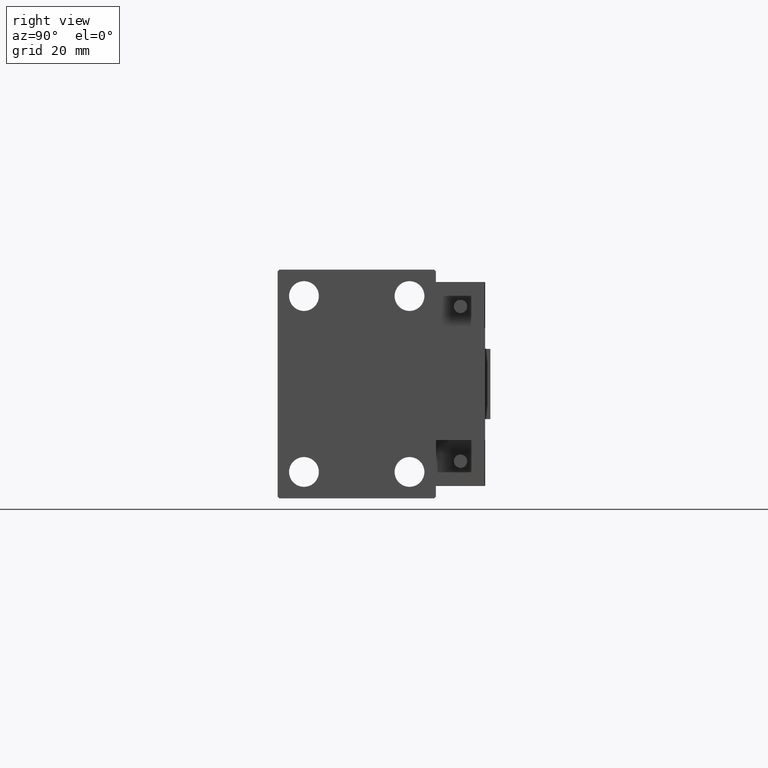
[diagram: clean part render]
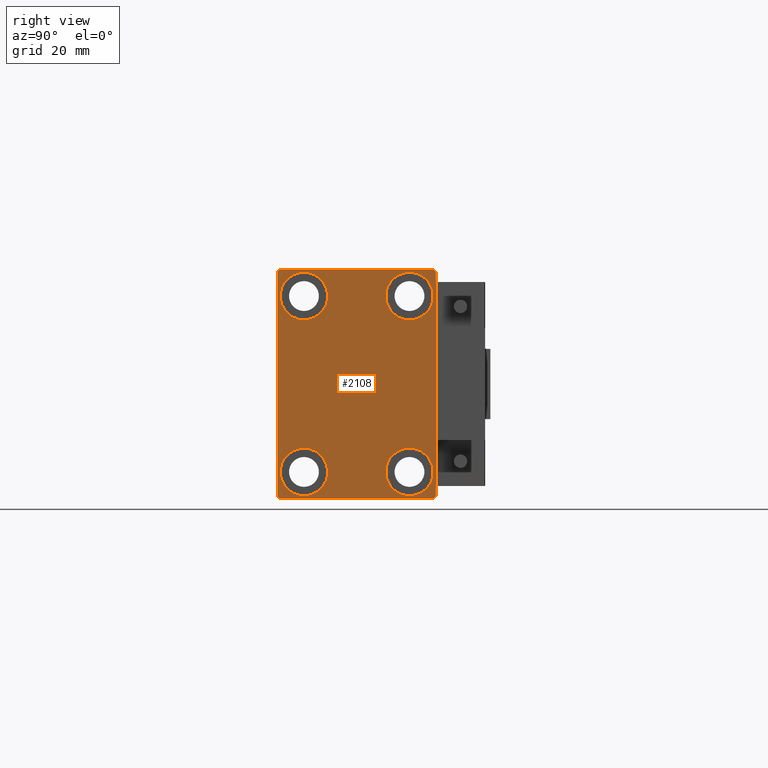
[diagram: same view with one face highlighted and labeled with its STEP entity id]
A machine part, right view. The second image highlights one B-rep face of the part: STEP entity #2108.
In plain terms, the highlighted planar face has unit normal (1, 0, 0).
Its self-contained STEP definition (entity closure, byte-faithful):
#698 = CARTESIAN_POINT ( 'NONE',  ( 70.00000000000000000, -22.50000000000000711, -32.50000000000000711 ) ) ;
#699 = CARTESIAN_POINT ( 'NONE',  ( 70.00000000000000000, 21.99999999999999289, 32.50000000000000000 ) ) ;
#853 = CARTESIAN_POINT ( 'NONE',  ( 70.00000000000000000, 15.00000000000000355, 31.75000000000000000 ) ) ;
#976 = DIRECTION ( 'NONE',  ( 0.000000000000000000, 0.000000000000000000, 1.000000000000000000 ) ) ;
#1065 = VERTEX_POINT ( 'NONE', #41222 ) ;
#1289 = CARTESIAN_POINT ( 'NONE',  ( 70.00000000000000000, -27.25000000000032330, -27.24999999999957012 ) ) ;
#1745 = AXIS2_PLACEMENT_3D ( 'NONE', #20031, #19768, #14964 ) ;
#2108 = ADVANCED_FACE ( 'NONE', ( #51268, #19255, #39156, #23273, #39419 ), #27567, .T. ) ;
#2276 = CARTESIAN_POINT ( 'NONE',  ( 70.00000000000000000, -15.00000000000000355, -18.25000000000000355 ) ) ;
#3414 = VERTEX_POINT ( 'NONE', #699 ) ;
#3437 = VERTEX_POINT ( 'NONE', #37506 ) ;
#3882 = VECTOR ( 'NONE', #16024, 1000.000000000000000 ) ;
#3944 = LINE ( 'NONE', #18507, #21646 ) ;
#4761 = DIRECTION ( 'NONE',  ( -1.000000000000000000, -0.000000000000000000, -0.000000000000000000 ) ) ;
#5088 = VECTOR ( 'NONE', #17197, 1000.000000000000000 ) ;
#5489 = EDGE_LOOP ( 'NONE', ( #29692, #32191 ) ) ;
#5593 = CIRCLE ( 'NONE', #8176, 6.749999999999999112 ) ;
#5631 = VERTEX_POINT ( 'NONE', #23959 ) ;
#5703 = EDGE_LOOP ( 'NONE', ( #22672, #26530 ) ) ;
#5903 = CIRCLE ( 'NONE', #32499, 6.749999999999999112 ) ;
#6068 = EDGE_CURVE ( 'NONE', #1065, #3437, #50896, .T. ) ;
#6536 = LINE ( 'NONE', #698, #10993 ) ;
#7524 = DIRECTION ( 'NONE',  ( -1.000000000000000000, -0.000000000000000000, -0.000000000000000000 ) ) ;
#8176 = AXIS2_PLACEMENT_3D ( 'NONE', #15042, #7524, #15568 ) ;
#8808 = EDGE_CURVE ( 'NONE', #24666, #45358, #36412, .T. ) ;
#9088 = ORIENTED_EDGE ( 'NONE', *, *, #52003, .T. ) ;
#9919 = CARTESIAN_POINT ( 'NONE',  ( 70.00000000000000000, 22.50000000000000000, -32.00000000000002132 ) ) ;
#10543 = LINE ( 'NONE', #14301, #35407 ) ;
#10993 = VECTOR ( 'NONE', #50884, 1000.000000000000000 ) ;
#11026 = EDGE_CURVE ( 'NONE', #45358, #24666, #24311, .T. ) ;
#11474 = EDGE_CURVE ( 'NONE', #38361, #25639, #5593, .T. ) ;
#13769 = DIRECTION ( 'NONE',  ( -1.000000000000000000, -0.000000000000000000, -0.000000000000000000 ) ) ;
#14173 = DIRECTION ( 'NONE',  ( 1.000000000000000000, 0.000000000000000000, 0.000000000000000000 ) ) ;
#14301 = CARTESIAN_POINT ( 'NONE',  ( 70.00000000000000000, 22.49999999999999289, 32.50000000000000000 ) ) ;
#14618 = VERTEX_POINT ( 'NONE', #21532 ) ;
#14964 = DIRECTION ( 'NONE',  ( 0.000000000000000000, 0.000000000000000000, 1.000000000000000000 ) ) ;
#15042 = CARTESIAN_POINT ( 'NONE',  ( 70.00000000000000000, -15.00000000000000355, -25.00000000000000000 ) ) ;
#15386 = EDGE_CURVE ( 'NONE', #21556, #30697, #20041, .T. ) ;
#15568 = DIRECTION ( 'NONE',  ( 0.000000000000000000, 0.000000000000000000, 1.000000000000000000 ) ) ;
#15623 = LINE ( 'NONE', #36306, #5088 ) ;
#15717 = AXIS2_PLACEMENT_3D ( 'NONE', #20660, #16641, #49458 ) ;
#15844 = ORIENTED_EDGE ( 'NONE', *, *, #45022, .T. ) ;
#16024 = DIRECTION ( 'NONE',  ( 0.000000000000000000, -1.067522139062650425E-16, 1.000000000000000000 ) ) ;
#16049 = EDGE_CURVE ( 'NONE', #30697, #3414, #26586, .T. ) ;
#16641 = DIRECTION ( 'NONE',  ( -1.000000000000000000, -0.000000000000000000, -0.000000000000000000 ) ) ;
#16796 = VERTEX_POINT ( 'NONE', #853 ) ;
#16993 = CARTESIAN_POINT ( 'NONE',  ( 70.00000000000000000, 15.00000000000000355, 25.00000000000000000 ) ) ;
#17197 = DIRECTION ( 'NONE',  ( 0.000000000000000000, 0.000000000000000000, -1.000000000000000000 ) ) ;
#17655 = DIRECTION ( 'NONE',  ( -0.000000000000000000, 0.7071067811865378028, -0.7071067811865573427 ) ) ;
#17898 = VERTEX_POINT ( 'NONE', #27118 ) ;
#18091 = EDGE_CURVE ( 'NONE', #14618, #17898, #21674, .T. ) ;
#18154 = ORIENTED_EDGE ( 'NONE', *, *, #18091, .T. ) ;
#18174 = AXIS2_PLACEMENT_3D ( 'NONE', #34288, #4761, #976 ) ;
#18507 = CARTESIAN_POINT ( 'NONE',  ( 70.00000000000000000, 27.25000000000032685, -27.24999999999957012 ) ) ;
#19255 = FACE_BOUND ( 'NONE', #36376, .T. ) ;
#19768 = DIRECTION ( 'NONE',  ( -1.000000000000000000, -0.000000000000000000, -0.000000000000000000 ) ) ;
#20031 = CARTESIAN_POINT ( 'NONE',  ( 70.00000000000000000, 15.00000000000000355, 25.00000000000000000 ) ) ;
#20041 = LINE ( 'NONE', #52860, #3882 ) ;
#20306 = DIRECTION ( 'NONE',  ( -0.000000000000000000, 0.7071067811865376918, 0.7071067811865573427 ) ) ;
#20660 = CARTESIAN_POINT ( 'NONE',  ( 70.00000000000000000, -14.99999999999999645, 25.00000000000000000 ) ) ;
#20823 = CARTESIAN_POINT ( 'NONE',  ( 70.00000000000000000, 14.99999999999999645, -31.75000000000000000 ) ) ;
#21532 = CARTESIAN_POINT ( 'NONE',  ( 70.00000000000000000, -22.50000000000000711, -32.00000000000000711 ) ) ;
#21556 = VERTEX_POINT ( 'NONE', #9919 ) ;
#21646 = VECTOR ( 'NONE', #20306, 1000.000000000000114 ) ;
#21674 = LINE ( 'NONE', #1289, #39107 ) ;
#22323 = CARTESIAN_POINT ( 'NONE',  ( 70.00000000000000000, -21.99999999999999289, 32.49999999999999289 ) ) ;
#22672 = ORIENTED_EDGE ( 'NONE', *, *, #49445, .T. ) ;
#23026 = CARTESIAN_POINT ( 'NONE',  ( 70.00000000000000000, -27.25000000000000000, 27.25000000000000000 ) ) ;
#23273 = FACE_BOUND ( 'NONE', #44369, .T. ) ;
#23523 = VERTEX_POINT ( 'NONE', #22323 ) ;
#23850 = VECTOR ( 'NONE', #46985, 1000.000000000000114 ) ;
#23959 = CARTESIAN_POINT ( 'NONE',  ( 70.00000000000000000, 22.00000000000001421, -32.50000000000000711 ) ) ;
#24041 = CIRCLE ( 'NONE', #1745, 6.749999999999999112 ) ;
#24303 = EDGE_CURVE ( 'NONE', #25639, #38361, #5903, .T. ) ;
#24311 = CIRCLE ( 'NONE', #47527, 6.749999999999999112 ) ;
#24389 = DIRECTION ( 'NONE',  ( -1.000000000000000000, -0.000000000000000000, -0.000000000000000000 ) ) ;
#24666 = VERTEX_POINT ( 'NONE', #20823 ) ;
#25627 = ORIENTED_EDGE ( 'NONE', *, *, #11474, .T. ) ;
#25639 = VERTEX_POINT ( 'NONE', #2276 ) ;
#25795 = AXIS2_PLACEMENT_3D ( 'NONE', #47234, #14173, #47774 ) ;
#26530 = ORIENTED_EDGE ( 'NONE', *, *, #37404, .T. ) ;
#26586 = LINE ( 'NONE', #51359, #47655 ) ;
#26993 = CARTESIAN_POINT ( 'NONE',  ( 70.00000000000000000, 14.99999999999999645, -18.25000000000000355 ) ) ;
#27086 = ORIENTED_EDGE ( 'NONE', *, *, #28555, .T. ) ;
#27118 = CARTESIAN_POINT ( 'NONE',  ( 70.00000000000000000, -22.00000000000002132, -32.50000000000000711 ) ) ;
#27535 = ORIENTED_EDGE ( 'NONE', *, *, #39173, .T. ) ;
#27567 = PLANE ( 'NONE',  #25795 ) ;
#28555 = EDGE_CURVE ( 'NONE', #33767, #14618, #15623, .T. ) ;
#28838 = ORIENTED_EDGE ( 'NONE', *, *, #6068, .T. ) ;
#29191 = CARTESIAN_POINT ( 'NONE',  ( 70.00000000000000000, 22.49999999999999289, 31.99999999999999289 ) ) ;
#29692 = ORIENTED_EDGE ( 'NONE', *, *, #8808, .T. ) ;
#30146 = DIRECTION ( 'NONE',  ( 0.000000000000000000, 0.000000000000000000, 1.000000000000000000 ) ) ;
#30418 = DIRECTION ( 'NONE',  ( 0.000000000000000000, -1.000000000000000000, -1.541976423090495387E-16 ) ) ;
#30697 = VERTEX_POINT ( 'NONE', #29191 ) ;
#31134 = CIRCLE ( 'NONE', #34611, 6.749999999999999112 ) ;
#31576 = ORIENTED_EDGE ( 'NONE', *, *, #39768, .T. ) ;
#32191 = ORIENTED_EDGE ( 'NONE', *, *, #11026, .T. ) ;
#32499 = AXIS2_PLACEMENT_3D ( 'NONE', #33517, #24389, #40784 ) ;
#32771 = CARTESIAN_POINT ( 'NONE',  ( 70.00000000000000000, 14.99999999999999645, -25.00000000000000000 ) ) ;
#33517 = CARTESIAN_POINT ( 'NONE',  ( 70.00000000000000000, -15.00000000000000355, -25.00000000000000000 ) ) ;
#33767 = VERTEX_POINT ( 'NONE', #52789 ) ;
#34288 = CARTESIAN_POINT ( 'NONE',  ( 70.00000000000000000, -14.99999999999999645, 25.00000000000000000 ) ) ;
#34611 = AXIS2_PLACEMENT_3D ( 'NONE', #16993, #50863, #46289 ) ;
#34948 = ORIENTED_EDGE ( 'NONE', *, *, #24303, .T. ) ;
#35407 = VECTOR ( 'NONE', #30418, 1000.000000000000000 ) ;
#36306 = CARTESIAN_POINT ( 'NONE',  ( 70.00000000000000000, -22.50000000000000711, 32.49999999999999289 ) ) ;
#36376 = EDGE_LOOP ( 'NONE', ( #9088, #28838 ) ) ;
#36412 = CIRCLE ( 'NONE', #44143, 6.749999999999999112 ) ;
#37404 = EDGE_CURVE ( 'NONE', #16796, #41682, #31134, .T. ) ;
#37506 = CARTESIAN_POINT ( 'NONE',  ( 70.00000000000000000, -14.99999999999999645, 18.25000000000000355 ) ) ;
#38149 = EDGE_LOOP ( 'NONE', ( #31576, #15844, #27086, #18154, #42085, #27535, #38542, #40912 ) ) ;
#38361 = VERTEX_POINT ( 'NONE', #44507 ) ;
#38542 = ORIENTED_EDGE ( 'NONE', *, *, #15386, .T. ) ;
#39107 = VECTOR ( 'NONE', #17655, 1000.000000000000000 ) ;
#39156 = FACE_BOUND ( 'NONE', #5703, .T. ) ;
#39173 = EDGE_CURVE ( 'NONE', #5631, #21556, #3944, .T. ) ;
#39243 = DIRECTION ( 'NONE',  ( -0.000000000000000000, -0.7071067811865425767, 0.7071067811865525687 ) ) ;
#39419 = FACE_OUTER_BOUND ( 'NONE', #38149, .T. ) ;
#39702 = LINE ( 'NONE', #23026, #23850 ) ;
#39768 = EDGE_CURVE ( 'NONE', #3414, #23523, #10543, .T. ) ;
#40563 = DIRECTION ( 'NONE',  ( -1.000000000000000000, -0.000000000000000000, -0.000000000000000000 ) ) ;
#40784 = DIRECTION ( 'NONE',  ( 0.000000000000000000, 0.000000000000000000, 1.000000000000000000 ) ) ;
#40821 = EDGE_CURVE ( 'NONE', #17898, #5631, #6536, .T. ) ;
#40912 = ORIENTED_EDGE ( 'NONE', *, *, #16049, .T. ) ;
#41222 = CARTESIAN_POINT ( 'NONE',  ( 70.00000000000000000, -14.99999999999999645, 31.75000000000000000 ) ) ;
#41357 = CIRCLE ( 'NONE', #18174, 6.749999999999999112 ) ;
#41682 = VERTEX_POINT ( 'NONE', #44184 ) ;
#42085 = ORIENTED_EDGE ( 'NONE', *, *, #40821, .T. ) ;
#44143 = AXIS2_PLACEMENT_3D ( 'NONE', #32771, #40563, #45676 ) ;
#44184 = CARTESIAN_POINT ( 'NONE',  ( 70.00000000000000000, 15.00000000000000355, 18.25000000000000355 ) ) ;
#44369 = EDGE_LOOP ( 'NONE', ( #25627, #34948 ) ) ;
#44507 = CARTESIAN_POINT ( 'NONE',  ( 70.00000000000000000, -15.00000000000000355, -31.75000000000000000 ) ) ;
#45022 = EDGE_CURVE ( 'NONE', #23523, #33767, #39702, .T. ) ;
#45358 = VERTEX_POINT ( 'NONE', #26993 ) ;
#45676 = DIRECTION ( 'NONE',  ( 0.000000000000000000, 0.000000000000000000, 1.000000000000000000 ) ) ;
#46289 = DIRECTION ( 'NONE',  ( 0.000000000000000000, 0.000000000000000000, 1.000000000000000000 ) ) ;
#46571 = CARTESIAN_POINT ( 'NONE',  ( 70.00000000000000000, 14.99999999999999645, -25.00000000000000000 ) ) ;
#46985 = DIRECTION ( 'NONE',  ( 0.000000000000000000, -0.7071067811865474617, -0.7071067811865474617 ) ) ;
#47234 = CARTESIAN_POINT ( 'NONE',  ( 70.00000000000000000, 0.000000000000000000, 0.000000000000000000 ) ) ;
#47527 = AXIS2_PLACEMENT_3D ( 'NONE', #46571, #13769, #30146 ) ;
#47655 = VECTOR ( 'NONE', #39243, 999.9999999999998863 ) ;
#47774 = DIRECTION ( 'NONE',  ( 0.000000000000000000, 0.000000000000000000, -1.000000000000000000 ) ) ;
#49445 = EDGE_CURVE ( 'NONE', #41682, #16796, #24041, .T. ) ;
#49458 = DIRECTION ( 'NONE',  ( 0.000000000000000000, 0.000000000000000000, 1.000000000000000000 ) ) ;
#50863 = DIRECTION ( 'NONE',  ( -1.000000000000000000, -0.000000000000000000, -0.000000000000000000 ) ) ;
#50884 = DIRECTION ( 'NONE',  ( 0.000000000000000000, 1.000000000000000000, 0.000000000000000000 ) ) ;
#50896 = CIRCLE ( 'NONE', #15717, 6.749999999999999112 ) ;
#51268 = FACE_BOUND ( 'NONE', #5489, .T. ) ;
#51359 = CARTESIAN_POINT ( 'NONE',  ( 70.00000000000000000, 27.25000000000014921, 27.24999999999976907 ) ) ;
#52003 = EDGE_CURVE ( 'NONE', #3437, #1065, #41357, .T. ) ;
#52789 = CARTESIAN_POINT ( 'NONE',  ( 70.00000000000000000, -22.50000000000000711, 31.99999999999999289 ) ) ;
#52860 = CARTESIAN_POINT ( 'NONE',  ( 70.00000000000000000, 22.50000000000000000, -32.50000000000000711 ) ) ;